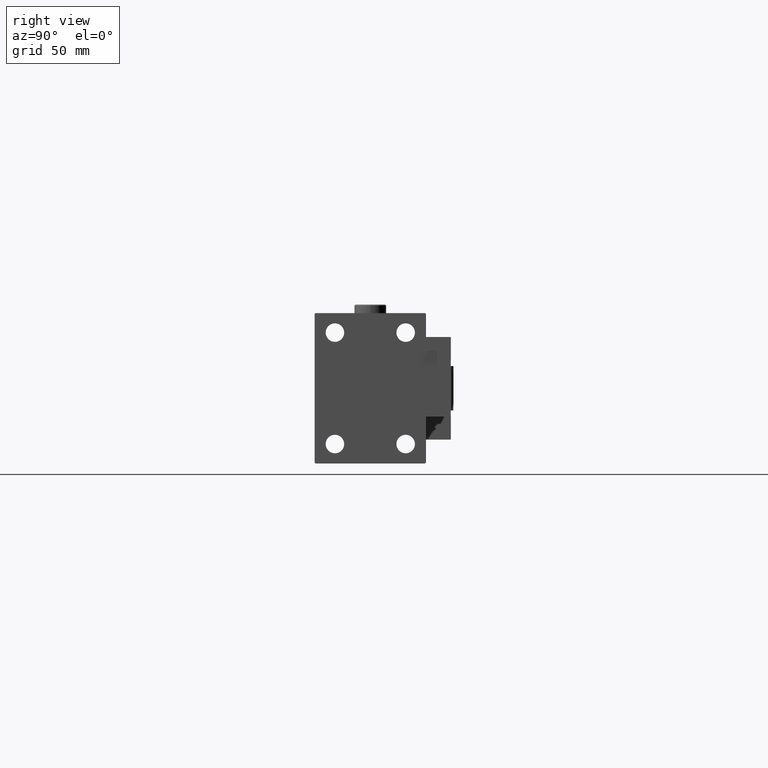
[diagram: clean part render]
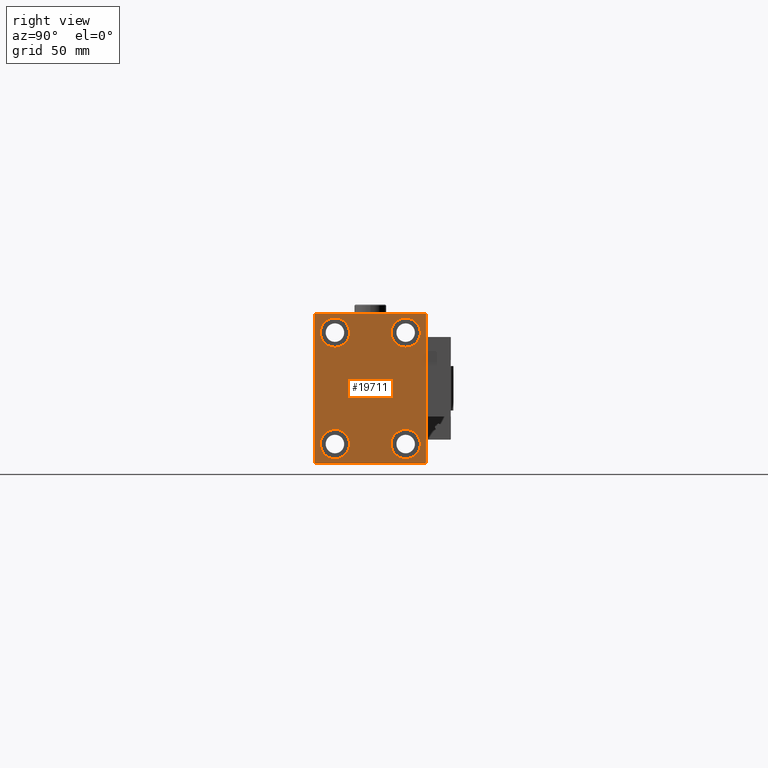
[diagram: same view with one face highlighted and labeled with its STEP entity id]
A machine part, right view. The second image highlights one B-rep face of the part: STEP entity #19711.
In plain terms, the highlighted planar face has unit normal (1, 0, 0).
Its self-contained STEP definition (entity closure, byte-faithful):
#253 = CARTESIAN_POINT ( 'NONE',  ( 263.0000000000000000, 30.99999999999998579, -42.50000000000000711 ) ) ;
#998 = VERTEX_POINT ( 'NONE', #11893 ) ;
#1046 = EDGE_CURVE ( 'NONE', #10503, #18970, #10172, .T. ) ;
#1095 = CARTESIAN_POINT ( 'NONE',  ( 263.0000000000000000, -20.00000000000000355, -39.74999999999999289 ) ) ;
#1135 = DIRECTION ( 'NONE',  ( -1.000000000000000000, -0.000000000000000000, -0.000000000000000000 ) ) ;
#1162 = CARTESIAN_POINT ( 'NONE',  ( 263.0000000000000000, 31.50000000000001421, -42.50000000000000711 ) ) ;
#1197 = EDGE_CURVE ( 'NONE', #16724, #19784, #9200, .T. ) ;
#1353 = CARTESIAN_POINT ( 'NONE',  ( 263.0000000000000000, 20.00000000000000355, 23.25000000000000355 ) ) ;
#1631 = EDGE_CURVE ( 'NONE', #35577, #25107, #49918, .T. ) ;
#2201 = EDGE_CURVE ( 'NONE', #25107, #6189, #18445, .T. ) ;
#2593 = EDGE_CURVE ( 'NONE', #41174, #35577, #16381, .T. ) ;
#2676 = CARTESIAN_POINT ( 'NONE',  ( 263.0000000000000000, 36.74999999999910472, 36.75000000000114397 ) ) ;
#3423 = VERTEX_POINT ( 'NONE', #6590 ) ;
#3473 = DIRECTION ( 'NONE',  ( -1.000000000000000000, -0.000000000000000000, -0.000000000000000000 ) ) ;
#4013 = CARTESIAN_POINT ( 'NONE',  ( 263.0000000000000000, -31.50000000000000000, -42.50000000000000711 ) ) ;
#5438 = DIRECTION ( 'NONE',  ( -0.000000000000000000, 0.7071067811865474617, -0.7071067811865474617 ) ) ;
#5822 = AXIS2_PLACEMENT_3D ( 'NONE', #22523, #14559, #30516 ) ;
#6158 = CARTESIAN_POINT ( 'NONE',  ( 263.0000000000000000, 30.99999999999991473, 42.50000000000000711 ) ) ;
#6189 = VERTEX_POINT ( 'NONE', #7696 ) ;
#6590 = CARTESIAN_POINT ( 'NONE',  ( 263.0000000000000000, -19.99999999999999645, 39.74999999999999289 ) ) ;
#7696 = CARTESIAN_POINT ( 'NONE',  ( 263.0000000000000000, 31.50000000000000000, 41.99999999999995737 ) ) ;
#7774 = DIRECTION ( 'NONE',  ( 0.000000000000000000, -1.000000000000000000, -2.202823461557850341E-16 ) ) ;
#8721 = CARTESIAN_POINT ( 'NONE',  ( 263.0000000000000000, -20.00000000000000355, -31.49999999999999289 ) ) ;
#9037 = CARTESIAN_POINT ( 'NONE',  ( 263.0000000000000000, 19.99999999999999645, -31.49999999999999289 ) ) ;
#9200 = CIRCLE ( 'NONE', #23224, 8.249999999999992895 ) ;
#9785 = EDGE_LOOP ( 'NONE', ( #37077, #54019 ) ) ;
#10172 = CIRCLE ( 'NONE', #45307, 8.250000000000000000 ) ;
#10244 = CIRCLE ( 'NONE', #19030, 8.250000000000000000 ) ;
#10457 = VERTEX_POINT ( 'NONE', #51459 ) ;
#10503 = VERTEX_POINT ( 'NONE', #39611 ) ;
#11080 = VECTOR ( 'NONE', #5438, 1000.000000000000114 ) ;
#11532 = CARTESIAN_POINT ( 'NONE',  ( 263.0000000000000000, 20.00000000000000355, 39.74999999999999289 ) ) ;
#11632 = CARTESIAN_POINT ( 'NONE',  ( 263.0000000000000000, 19.99999999999999645, -31.49999999999999289 ) ) ;
#11893 = CARTESIAN_POINT ( 'NONE',  ( 263.0000000000000000, -30.99999999999997158, 42.49999999999999289 ) ) ;
#12307 = DIRECTION ( 'NONE',  ( -1.000000000000000000, -0.000000000000000000, -0.000000000000000000 ) ) ;
#13541 = CARTESIAN_POINT ( 'NONE',  ( 263.0000000000000000, -19.99999999999999645, 31.50000000000000000 ) ) ;
#13699 = CARTESIAN_POINT ( 'NONE',  ( 263.0000000000000000, 31.50000000000001421, -41.99999999999997868 ) ) ;
#13753 = FACE_BOUND ( 'NONE', #42821, .T. ) ;
#13928 = EDGE_CURVE ( 'NONE', #33178, #44066, #40840, .T. ) ;
#13968 = DIRECTION ( 'NONE',  ( 0.000000000000000000, -0.7071067811865474617, -0.7071067811865474617 ) ) ;
#14175 = CARTESIAN_POINT ( 'NONE',  ( 263.0000000000000000, -19.99999999999999645, 23.25000000000000355 ) ) ;
#14180 = DIRECTION ( 'NONE',  ( -1.000000000000000000, -0.000000000000000000, -0.000000000000000000 ) ) ;
#14428 = ORIENTED_EDGE ( 'NONE', *, *, #36376, .T. ) ;
#14559 = DIRECTION ( 'NONE',  ( 1.000000000000000000, 0.000000000000000000, 0.000000000000000000 ) ) ;
#15958 = DIRECTION ( 'NONE',  ( 0.000000000000000000, 0.000000000000000000, 1.000000000000000000 ) ) ;
#16381 = LINE ( 'NONE', #4013, #52232 ) ;
#16724 = VERTEX_POINT ( 'NONE', #1353 ) ;
#17793 = LINE ( 'NONE', #42552, #11080 ) ;
#17861 = PLANE ( 'NONE',  #5822 ) ;
#18130 = FACE_BOUND ( 'NONE', #25373, .T. ) ;
#18192 = DIRECTION ( 'NONE',  ( -1.000000000000000000, -0.000000000000000000, -0.000000000000000000 ) ) ;
#18445 = LINE ( 'NONE', #1162, #45223 ) ;
#18496 = ORIENTED_EDGE ( 'NONE', *, *, #37220, .T. ) ;
#18894 = LINE ( 'NONE', #26599, #46933 ) ;
#18970 = VERTEX_POINT ( 'NONE', #19560 ) ;
#19030 = AXIS2_PLACEMENT_3D ( 'NONE', #8721, #12307, #24930 ) ;
#19167 = DIRECTION ( 'NONE',  ( 0.000000000000000000, 0.000000000000000000, -1.000000000000000000 ) ) ;
#19437 = DIRECTION ( 'NONE',  ( -0.000000000000000000, -0.7071067811865671127, 0.7071067811865279218 ) ) ;
#19560 = CARTESIAN_POINT ( 'NONE',  ( 263.0000000000000000, 19.99999999999999645, -39.74999999999999289 ) ) ;
#19711 = ADVANCED_FACE ( 'NONE', ( #40119, #31587, #18130, #13753, #22257 ), #17861, .T. ) ;
#19784 = VERTEX_POINT ( 'NONE', #11532 ) ;
#20073 = CARTESIAN_POINT ( 'NONE',  ( 263.0000000000000000, -20.00000000000000355, -31.49999999999999289 ) ) ;
#20262 = ORIENTED_EDGE ( 'NONE', *, *, #26891, .T. ) ;
#20918 = CIRCLE ( 'NONE', #43755, 8.250000000000000000 ) ;
#20926 = ORIENTED_EDGE ( 'NONE', *, *, #2201, .T. ) ;
#21119 = DIRECTION ( 'NONE',  ( 0.000000000000000000, 0.000000000000000000, 1.000000000000000000 ) ) ;
#21210 = CARTESIAN_POINT ( 'NONE',  ( 263.0000000000000000, 20.00000000000000355, 31.50000000000000000 ) ) ;
#21533 = CIRCLE ( 'NONE', #47050, 8.249999999999992895 ) ;
#21686 = CIRCLE ( 'NONE', #54160, 8.249999999999992895 ) ;
#22149 = CARTESIAN_POINT ( 'NONE',  ( 263.0000000000000000, 20.00000000000000355, 31.50000000000000000 ) ) ;
#22257 = FACE_OUTER_BOUND ( 'NONE', #46827, .T. ) ;
#22523 = CARTESIAN_POINT ( 'NONE',  ( 263.0000000000000000, 0.000000000000000000, 0.000000000000000000 ) ) ;
#22618 = ORIENTED_EDGE ( 'NONE', *, *, #34778, .T. ) ;
#22957 = DIRECTION ( 'NONE',  ( 0.000000000000000000, 0.000000000000000000, 1.000000000000000000 ) ) ;
#23224 = AXIS2_PLACEMENT_3D ( 'NONE', #21210, #1135, #39058 ) ;
#23304 = VECTOR ( 'NONE', #19437, 1000.000000000000000 ) ;
#24383 = LINE ( 'NONE', #40617, #40787 ) ;
#24790 = DIRECTION ( 'NONE',  ( -1.000000000000000000, -0.000000000000000000, -0.000000000000000000 ) ) ;
#24930 = DIRECTION ( 'NONE',  ( 0.000000000000000000, 0.000000000000000000, 1.000000000000000000 ) ) ;
#25077 = EDGE_CURVE ( 'NONE', #18970, #10503, #20918, .T. ) ;
#25107 = VERTEX_POINT ( 'NONE', #13699 ) ;
#25235 = ORIENTED_EDGE ( 'NONE', *, *, #45265, .T. ) ;
#25373 = EDGE_LOOP ( 'NONE', ( #44516, #25235 ) ) ;
#25988 = ORIENTED_EDGE ( 'NONE', *, *, #34719, .T. ) ;
#26181 = DIRECTION ( 'NONE',  ( 0.000000000000000000, 0.000000000000000000, 1.000000000000000000 ) ) ;
#26249 = VERTEX_POINT ( 'NONE', #14175 ) ;
#26599 = CARTESIAN_POINT ( 'NONE',  ( 263.0000000000000000, -36.74999999999997868, 36.74999999999997868 ) ) ;
#26891 = EDGE_CURVE ( 'NONE', #47543, #998, #49006, .T. ) ;
#27056 = EDGE_LOOP ( 'NONE', ( #18496, #43646 ) ) ;
#27182 = ORIENTED_EDGE ( 'NONE', *, *, #2593, .T. ) ;
#28648 = CARTESIAN_POINT ( 'NONE',  ( 263.0000000000000000, 31.50000000000000000, 42.50000000000000711 ) ) ;
#28748 = CARTESIAN_POINT ( 'NONE',  ( 263.0000000000000000, -19.99999999999999645, 31.50000000000000000 ) ) ;
#30032 = DIRECTION ( 'NONE',  ( 0.000000000000000000, 0.000000000000000000, 1.000000000000000000 ) ) ;
#30516 = DIRECTION ( 'NONE',  ( 0.000000000000000000, 0.000000000000000000, -1.000000000000000000 ) ) ;
#30673 = VERTEX_POINT ( 'NONE', #50287 ) ;
#30829 = ORIENTED_EDGE ( 'NONE', *, *, #13928, .T. ) ;
#31420 = AXIS2_PLACEMENT_3D ( 'NONE', #22149, #14180, #42777 ) ;
#31587 = FACE_BOUND ( 'NONE', #27056, .T. ) ;
#32697 = ORIENTED_EDGE ( 'NONE', *, *, #37820, .T. ) ;
#33178 = VERTEX_POINT ( 'NONE', #1095 ) ;
#34719 = EDGE_CURVE ( 'NONE', #998, #10457, #18894, .T. ) ;
#34778 = EDGE_CURVE ( 'NONE', #10457, #30673, #24383, .T. ) ;
#35222 = DIRECTION ( 'NONE',  ( 0.000000000000000000, -1.632680918566406300E-16, 1.000000000000000000 ) ) ;
#35577 = VERTEX_POINT ( 'NONE', #253 ) ;
#36376 = EDGE_CURVE ( 'NONE', #6189, #47543, #40330, .T. ) ;
#37077 = ORIENTED_EDGE ( 'NONE', *, *, #25077, .T. ) ;
#37220 = EDGE_CURVE ( 'NONE', #26249, #3423, #21533, .T. ) ;
#37284 = VECTOR ( 'NONE', #41682, 1000.000000000000114 ) ;
#37294 = AXIS2_PLACEMENT_3D ( 'NONE', #20073, #40427, #15958 ) ;
#37590 = CIRCLE ( 'NONE', #31420, 8.249999999999992895 ) ;
#37820 = EDGE_CURVE ( 'NONE', #30673, #41174, #17793, .T. ) ;
#39000 = CARTESIAN_POINT ( 'NONE',  ( 263.0000000000000000, -30.99999999999997158, -42.50000000000000711 ) ) ;
#39058 = DIRECTION ( 'NONE',  ( 0.000000000000000000, 0.000000000000000000, 1.000000000000000000 ) ) ;
#39611 = CARTESIAN_POINT ( 'NONE',  ( 263.0000000000000000, 19.99999999999999645, -23.24999999999999289 ) ) ;
#40119 = FACE_BOUND ( 'NONE', #9785, .T. ) ;
#40330 = LINE ( 'NONE', #2676, #23304 ) ;
#40363 = EDGE_CURVE ( 'NONE', #44066, #33178, #10244, .T. ) ;
#40427 = DIRECTION ( 'NONE',  ( -1.000000000000000000, -0.000000000000000000, -0.000000000000000000 ) ) ;
#40617 = CARTESIAN_POINT ( 'NONE',  ( 263.0000000000000000, -31.50000000000000000, 42.49999999999999289 ) ) ;
#40787 = VECTOR ( 'NONE', #19167, 1000.000000000000000 ) ;
#40840 = CIRCLE ( 'NONE', #37294, 8.250000000000000000 ) ;
#41174 = VERTEX_POINT ( 'NONE', #39000 ) ;
#41682 = DIRECTION ( 'NONE',  ( -0.000000000000000000, 0.7071067811865474617, 0.7071067811865474617 ) ) ;
#42021 = DIRECTION ( 'NONE',  ( -1.000000000000000000, -0.000000000000000000, -0.000000000000000000 ) ) ;
#42474 = DIRECTION ( 'NONE',  ( 0.000000000000000000, 1.000000000000000000, 0.000000000000000000 ) ) ;
#42552 = CARTESIAN_POINT ( 'NONE',  ( 263.0000000000000000, -36.74999999999998579, -36.74999999999998579 ) ) ;
#42777 = DIRECTION ( 'NONE',  ( 0.000000000000000000, 0.000000000000000000, 1.000000000000000000 ) ) ;
#42821 = EDGE_LOOP ( 'NONE', ( #30829, #46069 ) ) ;
#43646 = ORIENTED_EDGE ( 'NONE', *, *, #43975, .T. ) ;
#43755 = AXIS2_PLACEMENT_3D ( 'NONE', #9037, #42021, #21119 ) ;
#43975 = EDGE_CURVE ( 'NONE', #3423, #26249, #21686, .T. ) ;
#44066 = VERTEX_POINT ( 'NONE', #49911 ) ;
#44516 = ORIENTED_EDGE ( 'NONE', *, *, #1197, .T. ) ;
#45223 = VECTOR ( 'NONE', #35222, 1000.000000000000000 ) ;
#45265 = EDGE_CURVE ( 'NONE', #19784, #16724, #37590, .T. ) ;
#45307 = AXIS2_PLACEMENT_3D ( 'NONE', #11632, #24790, #22957 ) ;
#45804 = CARTESIAN_POINT ( 'NONE',  ( 263.0000000000000000, 36.74999999999999289, -36.74999999999999289 ) ) ;
#46069 = ORIENTED_EDGE ( 'NONE', *, *, #40363, .T. ) ;
#46827 = EDGE_LOOP ( 'NONE', ( #20262, #25988, #22618, #32697, #27182, #48176, #20926, #14428 ) ) ;
#46933 = VECTOR ( 'NONE', #13968, 1000.000000000000114 ) ;
#47050 = AXIS2_PLACEMENT_3D ( 'NONE', #13541, #18192, #30032 ) ;
#47543 = VERTEX_POINT ( 'NONE', #6158 ) ;
#48176 = ORIENTED_EDGE ( 'NONE', *, *, #1631, .T. ) ;
#49006 = LINE ( 'NONE', #28648, #49098 ) ;
#49098 = VECTOR ( 'NONE', #7774, 1000.000000000000000 ) ;
#49911 = CARTESIAN_POINT ( 'NONE',  ( 263.0000000000000000, -20.00000000000000355, -23.24999999999999289 ) ) ;
#49918 = LINE ( 'NONE', #45804, #37284 ) ;
#50287 = CARTESIAN_POINT ( 'NONE',  ( 263.0000000000000000, -31.50000000000000000, -41.99999999999997868 ) ) ;
#51459 = CARTESIAN_POINT ( 'NONE',  ( 263.0000000000000000, -31.50000000000000000, 41.99999999999996447 ) ) ;
#52232 = VECTOR ( 'NONE', #42474, 1000.000000000000000 ) ;
#54019 = ORIENTED_EDGE ( 'NONE', *, *, #1046, .T. ) ;
#54160 = AXIS2_PLACEMENT_3D ( 'NONE', #28748, #3473, #26181 ) ;